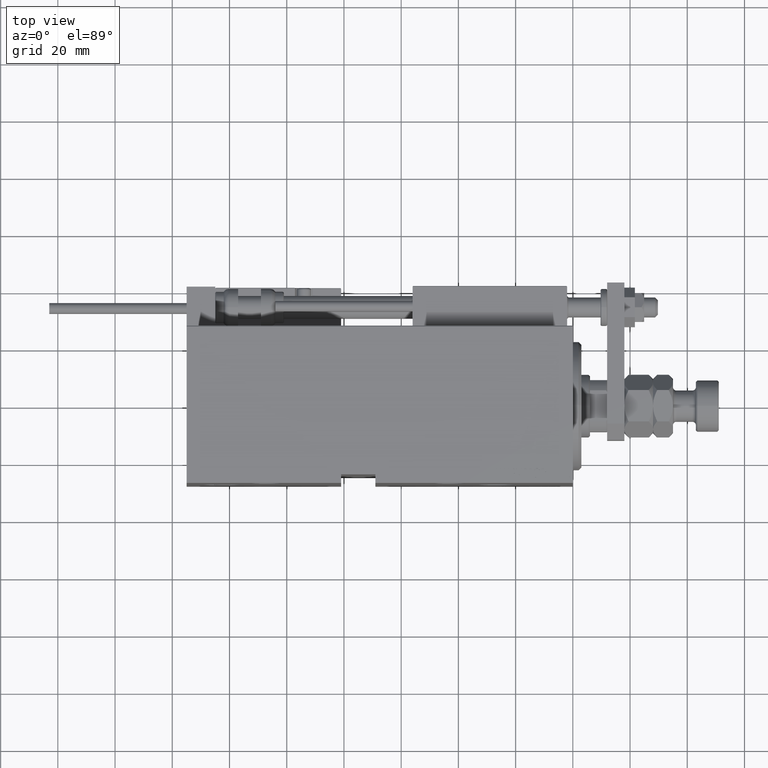
[diagram: clean part render]
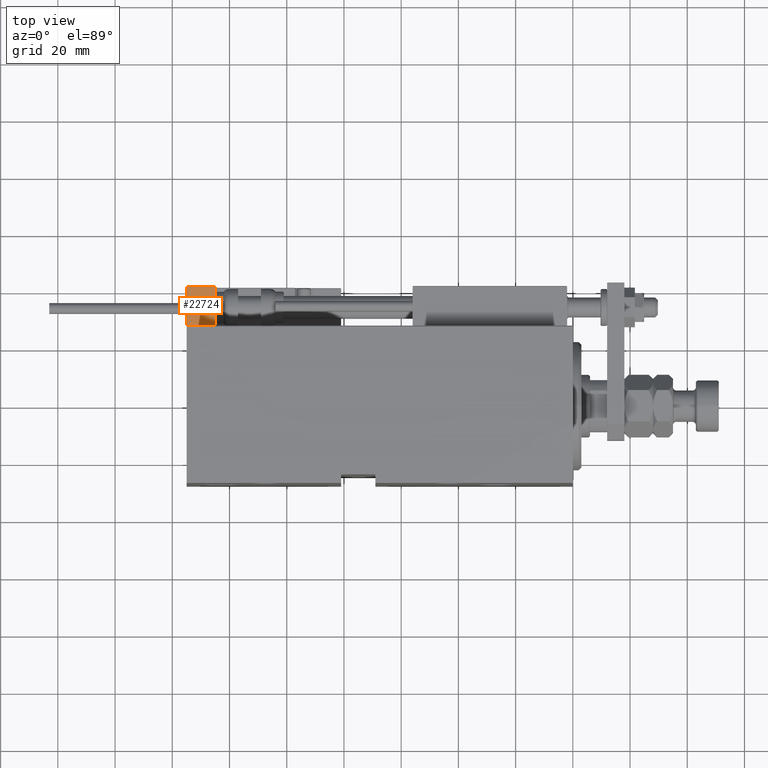
[diagram: same view with one face highlighted and labeled with its STEP entity id]
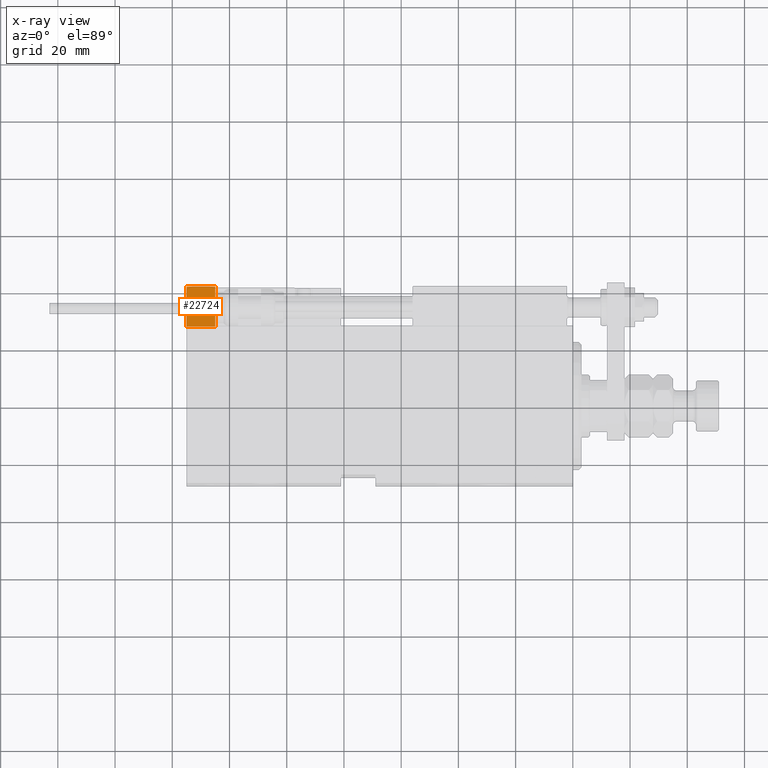
[diagram: x-ray of the same camera — body ghosted, the highlighted face saturated]
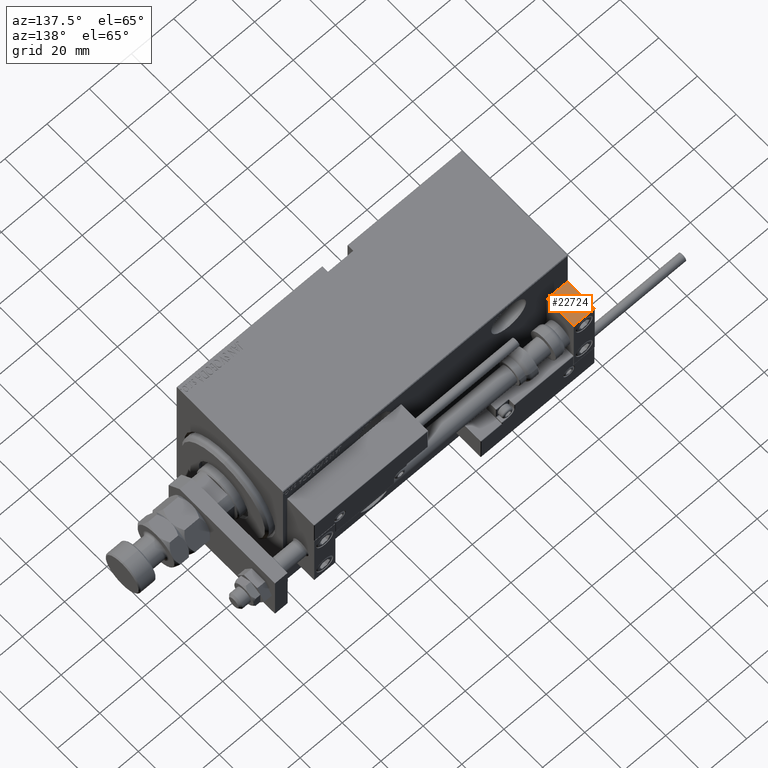
[diagram: same view with one face highlighted and labeled with its STEP entity id]
A machine part, top view. The second image highlights one B-rep face of the part: STEP entity #22724.
The next image is the same camera in x-ray: the body ghosted, the highlighted face saturated — about 0% of this face is hidden behind the body in this view.
A second angle (auxiliary view) of the same face is appended — the face is thin or edge-on in the first view.
In plain terms, the highlighted planar face has unit normal (0, 0, 1).
Its self-contained STEP definition (entity closure, byte-faithful):
#1127 = CARTESIAN_POINT ( 'NONE',  ( 0.000000000000000000, 7.000000000000000000, -16.00000000000000711 ) ) ;
#1448 = DIRECTION ( 'NONE',  ( 0.000000000000000000, 0.000000000000000000, -1.000000000000000000 ) ) ;
#1510 = AXIS2_PLACEMENT_3D ( 'NONE', #36062, #1448, #17292 ) ;
#5235 = EDGE_LOOP ( 'NONE', ( #49727, #13814, #51460, #17486 ) ) ;
#5303 = EDGE_CURVE ( 'NONE', #24472, #10113, #8697, .T. ) ;
#7216 = VERTEX_POINT ( 'NONE', #23621 ) ;
#8697 = LINE ( 'NONE', #24563, #29440 ) ;
#10113 = VERTEX_POINT ( 'NONE', #18836 ) ;
#12077 = VECTOR ( 'NONE', #50425, 1000.000000000000000 ) ;
#13814 = ORIENTED_EDGE ( 'NONE', *, *, #50294, .F. ) ;
#14444 = VECTOR ( 'NONE', #49760, 1000.000000000000000 ) ;
#17292 = DIRECTION ( 'NONE',  ( -1.000000000000000000, 0.000000000000000000, -0.000000000000000000 ) ) ;
#17486 = ORIENTED_EDGE ( 'NONE', *, *, #5303, .T. ) ;
#18153 = CARTESIAN_POINT ( 'NONE',  ( 10.00000000000000000, 7.000000000000000000, -16.00000000000000711 ) ) ;
#18541 = LINE ( 'NONE', #35373, #14444 ) ;
#18836 = CARTESIAN_POINT ( 'NONE',  ( 0.000000000000000000, -7.000000000000000000, -16.00000000000000711 ) ) ;
#22724 = ADVANCED_FACE ( 'NONE', ( #44887 ), #25113, .T. ) ;
#23621 = CARTESIAN_POINT ( 'NONE',  ( 0.000000000000000000, 7.000000000000000000, -16.00000000000000711 ) ) ;
#24472 = VERTEX_POINT ( 'NONE', #45290 ) ;
#24563 = CARTESIAN_POINT ( 'NONE',  ( 10.00000000000000000, -7.000000000000000000, -16.00000000000000711 ) ) ;
#25113 = PLANE ( 'NONE',  #1510 ) ;
#25670 = VERTEX_POINT ( 'NONE', #47833 ) ;
#25703 = LINE ( 'NONE', #18153, #12077 ) ;
#27783 = VECTOR ( 'NONE', #48740, 1000.000000000000000 ) ;
#29440 = VECTOR ( 'NONE', #40454, 1000.000000000000000 ) ;
#35373 = CARTESIAN_POINT ( 'NONE',  ( 10.00000000000000000, 7.000000000000000000, -16.00000000000000711 ) ) ;
#36062 = CARTESIAN_POINT ( 'NONE',  ( 10.00000000000000000, 7.000000000000000000, -16.00000000000000711 ) ) ;
#40454 = DIRECTION ( 'NONE',  ( -1.000000000000000000, -0.000000000000000000, -0.000000000000000000 ) ) ;
#44575 = LINE ( 'NONE', #1127, #27783 ) ;
#44887 = FACE_OUTER_BOUND ( 'NONE', #5235, .T. ) ;
#45290 = CARTESIAN_POINT ( 'NONE',  ( 10.00000000000000000, -7.000000000000000000, -16.00000000000000711 ) ) ;
#46760 = EDGE_CURVE ( 'NONE', #25670, #24472, #18541, .T. ) ;
#47833 = CARTESIAN_POINT ( 'NONE',  ( 10.00000000000000000, 7.000000000000000000, -16.00000000000000711 ) ) ;
#48521 = EDGE_CURVE ( 'NONE', #7216, #10113, #44575, .T. ) ;
#48740 = DIRECTION ( 'NONE',  ( 0.000000000000000000, -1.000000000000000000, 0.000000000000000000 ) ) ;
#49727 = ORIENTED_EDGE ( 'NONE', *, *, #48521, .F. ) ;
#49760 = DIRECTION ( 'NONE',  ( 0.000000000000000000, -1.000000000000000000, 0.000000000000000000 ) ) ;
#50294 = EDGE_CURVE ( 'NONE', #25670, #7216, #25703, .T. ) ;
#50425 = DIRECTION ( 'NONE',  ( -1.000000000000000000, -0.000000000000000000, -0.000000000000000000 ) ) ;
#51460 = ORIENTED_EDGE ( 'NONE', *, *, #46760, .T. ) ;